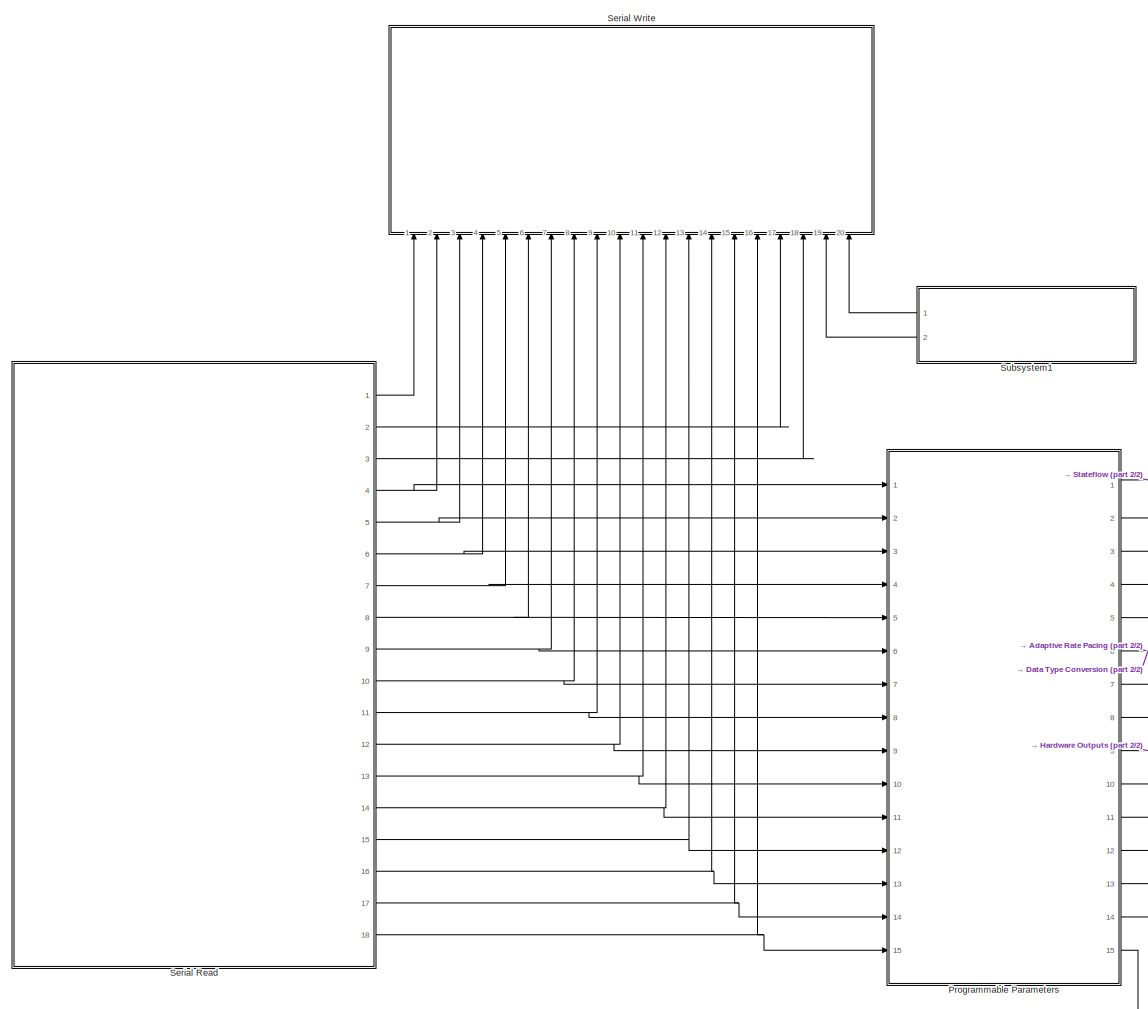
[diagram: root canvas - part 1/2, left side, full height]
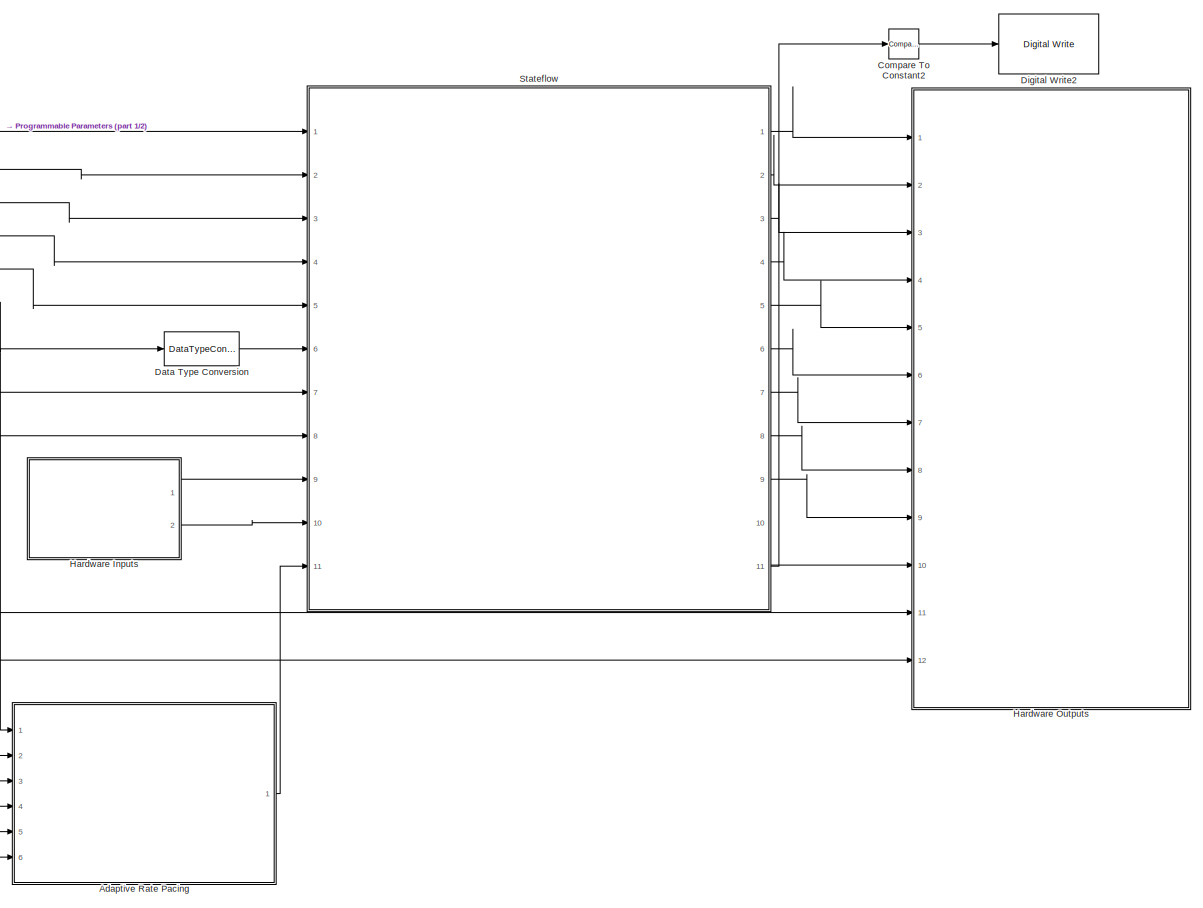
[diagram: root canvas - part 2/2, middle right region]
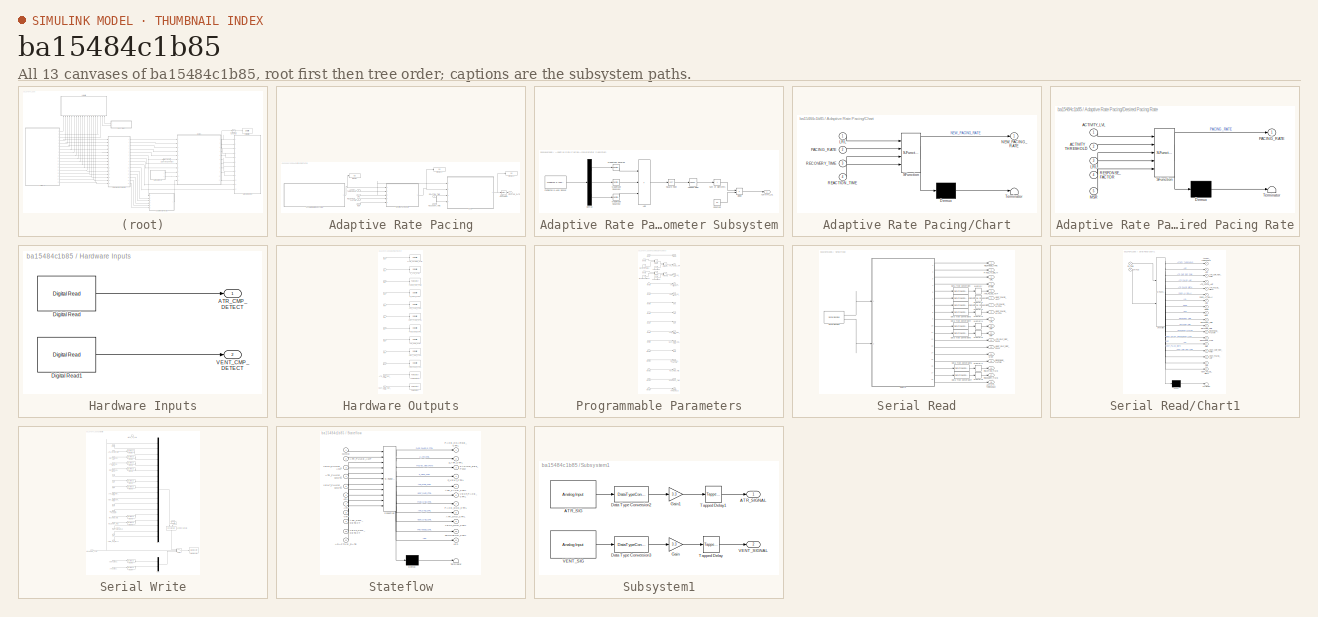
[diagram: thumbnail index - all 13 canvases of the model, root first then tree order]
MODEL slx_ba15484c1b85
KIND model
CONFIG AbsTol = auto
CONFIG EnableMultiTasking = on
CONFIG FixedStep = 1e-3
CONFIG MaxStep = auto
CONFIG MinStep = auto
CONFIG RelTol = 1e-3
CONFIG SampleTimeConstraint = Unconstrained
CONFIG Solver = FixedStepAuto
CONFIG SolverName = FixedStepAuto
CONFIG StartTime = 0.0
CONFIG StopTime = 40
BLOCK [SubSystem] Adaptive Rate Pacing
  Ports = [6, 1]
  TreatAsAtomicUnit = on
BLOCK [Inport] Adaptive Rate Pacing/ACTIVITY_THRESHOLD
  Port = 6
BLOCK [Outport] Adaptive Rate Pacing/ADAPTIVE_RATE
BLOCK [SubSystem] Adaptive Rate Pacing/Accelerometer Subsystem
  Ports = [0, 1]
BLOCK [Outport] Adaptive Rate Pacing/Accelerometer Subsystem/ACTIVITY_LVL
BLOCK [Sum] Adaptive Rate Pacing/Accelerometer Subsystem/Add
  IconShape = rectangular
  Inputs = +++
  Ports = [3, 1]
BLOCK [Constant] Adaptive Rate Pacing/Accelerometer Subsystem/Constant
  Value = 50
BLOCK [Demux] Adaptive Rate Pacing/Accelerometer Subsystem/Demux
  Outputs = 3
  Ports = [1, 3]
BLOCK [Product] Adaptive Rate Pacing/Accelerometer Subsystem/Divide
  Inputs = */
  Ports = [2, 1]
BLOCK [Reference] Adaptive Rate Pacing/Accelerometer Subsystem/FXOS8700 6-Axes Sensor  REF=frdmk64flib/FXOS8700 6-Axes Sensor
  Ports = [0, 1]
  SourceBlock = frdmk64flib/FXOS8700 6-Axes Sensor
  SourceType = freedomk64f.fxos8700
BLOCK [Math] Adaptive Rate Pacing/Accelerometer Subsystem/Magnitude Squared
  Operator = magnitude^2
  Ports = [1, 1]
BLOCK [Math] Adaptive Rate Pacing/Accelerometer Subsystem/Magnitude Squared1
  Operator = magnitude^2
  Ports = [1, 1]
BLOCK [Math] Adaptive Rate Pacing/Accelerometer Subsystem/Magnitude Squared2
  Operator = magnitude^2
  Ports = [1, 1]
BLOCK [Sqrt] Adaptive Rate Pacing/Accelerometer Subsystem/Square Root
BLOCK [Sum] Adaptive Rate Pacing/Accelerometer Subsystem/Sum of Elements
  IconShape = rectangular
  Inputs = +
  Ports = [1, 1]
BLOCK [Reference] Adaptive Rate Pacing/Accelerometer Subsystem/Tapped Delay  REF=simulink/Discrete/Tapped Delay
  Ports = [1, 1]
  SourceBlock = simulink/Discrete/Tapped Delay
  SourceType = Tapped Delay Line
BLOCK [SubSystem] Adaptive Rate Pacing/Chart
  ErrorFcn = Stateflow.Translate.translate
  PermitHierarchicalResolution = ExplicitOnly
  PortSchema = {"entries":[{"content":{"sides":[{"content":{"connectorIds":["In1","In2","In4","In3"]},"type":"ConnectorPlacement.EquallySpacedRectSide","uuid":"fedab669-afc8-4b81-9e8e-92a87252e5ac"},{"content":{"connectorIds":["Out1"],"side":"RIGHT"},"type":"ConnectorPlacement.EquallySpacedRectSide","uuid":"e22eef68-a900-4eb5-a3ef-7284a4069aea"},{"content":{"side":"TOP"},"type":"ConnectorPlacement.EquallySpacedR...<+240ch>
  Ports = [4, 1]
  SFBlockType = Chart
  TreatAsAtomicUnit = on
BLOCK [Demux] Adaptive Rate Pacing/Chart/ Demux 
  Outputs = 1
  Ports = [1, 1]
BLOCK [S-Function] Adaptive Rate Pacing/Chart/ SFunction 
  EnableBusSupport = off
  FunctionName = sf_sfun
  PortCounts = [4 2]
  Ports = [4, 2]
  SFcnIsStateOwnerBlock = off
  SFunctionDeploymentMode = off
  Tag = Stateflow S-Function 1
BLOCK [Terminator] Adaptive Rate Pacing/Chart/ Terminator 
BLOCK [Inport] Adaptive Rate Pacing/Chart/LRL
BLOCK [Outport] Adaptive Rate Pacing/Chart/NEW_PACING_RATE
BLOCK [Inport] Adaptive Rate Pacing/Chart/PACING_RATE
  Port = 2
BLOCK [Inport] Adaptive Rate Pacing/Chart/REACTION_TIME
  Port = 4
BLOCK [Inport] Adaptive Rate Pacing/Chart/RECOVERY_TIME
  Port = 3
BLOCK [DataTypeConversion] Adaptive Rate Pacing/Data Type Conversion
  OutDataTypeStr = uint16
  RndMeth = Floor
  SaturateOnIntegerOverflow = off
BLOCK [SubSystem] Adaptive Rate Pacing/Desired Pacing Rate
  ErrorFcn = Stateflow.Translate.translate
  PermitHierarchicalResolution = ExplicitOnly
  Ports = [5, 1]
  SFBlockType = MATLAB Function
  TreatAsAtomicUnit = on
BLOCK [Demux] Adaptive Rate Pacing/Desired Pacing Rate/ Demux 
  Outputs = 1
  Ports = [1, 1]
BLOCK [S-Function] Adaptive Rate Pacing/Desired Pacing Rate/ SFunction 
  EnableBusSupport = off
  FunctionName = sf_sfun
  PortCounts = [5 2]
  Ports = [5, 2]
  SFcnIsStateOwnerBlock = off
  SFunctionDeploymentMode = off
  Tag = Stateflow S-Function 4
BLOCK [Terminator] Adaptive Rate Pacing/Desired Pacing Rate/ Terminator 
BLOCK [Inport] Adaptive Rate Pacing/Desired Pacing Rate/ACTIVITY_LVL
BLOCK [Inport] Adaptive Rate Pacing/Desired Pacing Rate/ACTIVITY_THRESHOLD
  Port = 2
BLOCK [Inport] Adaptive Rate Pacing/Desired Pacing Rate/LRL
  Port = 3
BLOCK [Inport] Adaptive Rate Pacing/Desired Pacing Rate/MSR
  Port = 5
BLOCK [Outport] Adaptive Rate Pacing/Desired Pacing Rate/PACING_RATE
BLOCK [Inport] Adaptive Rate Pacing/Desired Pacing Rate/RESPONSE_FACTOR
  Port = 4
BLOCK [Display] Adaptive Rate Pacing/Display
  Decimation = 1
  Ports = [1]
BLOCK [Display] Adaptive Rate Pacing/Display1
  Decimation = 1
  Ports = [1]
BLOCK [Display] Adaptive Rate Pacing/Display2
  Decimation = 1
  Ports = [1]
BLOCK [Inport] Adaptive Rate Pacing/LRL
BLOCK [Inport] Adaptive Rate Pacing/MSR
  Port = 2
BLOCK [Inport] Adaptive Rate Pacing/REACTION_TIME
  Port = 4
BLOCK [Inport] Adaptive Rate Pacing/RECOVERY_TIME
  Port = 5
BLOCK [Inport] Adaptive Rate Pacing/RESPONSE_FACTOR
  Port = 3
BLOCK [Reference] Compare To Constant2  REF=simulink/Logic and Bit
Operations/Compare
To Constant
  Ports = [1, 1]
  SourceBlock = simulink/Logic and Bit\nOperations/Compare\nTo Constant
  SourceType = Compare To Constant
BLOCK [DataTypeConversion] Data Type Conversion
  OutDataTypeStr = uint16
  RndMeth = Floor
  SaturateOnIntegerOverflow = off
BLOCK [Reference] Digital Write2  REF=frdmk64flib/Digital Write
  Ports = [1]
  SourceBlock = frdmk64flib/Digital Write
  SourceType = freedomk64f.DigitalWrite
BLOCK [SubSystem] Hardware Inputs
  Ports = [0, 2]
BLOCK [Outport] Hardware Inputs/ATR_CMP_DETECT
BLOCK [Reference] Hardware Inputs/Digital Read  REF=frdmk64flib/Digital Read
  Ports = [0, 1]
  SourceBlock = frdmk64flib/Digital Read
  SourceType = freedomk64f.DigitalRead
BLOCK [Reference] Hardware Inputs/Digital Read1  REF=frdmk64flib/Digital Read
  Ports = [0, 1]
  SourceBlock = frdmk64flib/Digital Read
  SourceType = freedomk64f.DigitalRead
BLOCK [Outport] Hardware Inputs/VENT_CMP_DETECT
  Port = 2
BLOCK [SubSystem] Hardware Outputs
  Ports = [12]
BLOCK [Inport] Hardware Outputs/ATR_CMP_REF_PWM
  Port = 11
BLOCK [Reference] Hardware Outputs/ATR_GND_CTRL  REF=frdmk64flib/Digital Write
  Ports = [1]
  SourceBlock = frdmk64flib/Digital Write
  SourceType = freedomk64f.DigitalWrite
BLOCK [Reference] Hardware Outputs/ATR_PACE_CTRL  REF=frdmk64flib/Digital Write
  Ports = [1]
  SourceBlock = frdmk64flib/Digital Write
  SourceType = freedomk64f.DigitalWrite
BLOCK [Reference] Hardware Outputs/FRONTEND_CTRL  REF=frdmk64flib/Digital Write
  Ports = [1]
  SourceBlock = frdmk64flib/Digital Write
  SourceType = freedomk64f.DigitalWrite
BLOCK [Inport] Hardware Outputs/In1
BLOCK [Inport] Hardware Outputs/In10
  Port = 10
BLOCK [Inport] Hardware Outputs/In2
  Port = 2
BLOCK [Inport] Hardware Outputs/In3
  Port = 3
BLOCK [Inport] Hardware Outputs/In4
  Port = 4
BLOCK [Inport] Hardware Outputs/In5
  Port = 5
BLOCK [Inport] Hardware Outputs/In6
  Port = 6
BLOCK [Inport] Hardware Outputs/In7
  Port = 7
BLOCK [Inport] Hardware Outputs/In8
  Port = 8
BLOCK [Inport] Hardware Outputs/In9
  Port = 9
BLOCK [Reference] Hardware Outputs/PACE_CHARGE_CTRL  REF=frdmk64flib/Digital Write
  Ports = [1]
  SourceBlock = frdmk64flib/Digital Write
  SourceType = freedomk64f.DigitalWrite
BLOCK [Reference] Hardware Outputs/PACE_GND_CTRL  REF=frdmk64flib/Digital Write
  Ports = [1]
  SourceBlock = frdmk64flib/Digital Write
  SourceType = freedomk64f.DigitalWrite
BLOCK [Reference] Hardware Outputs/PACING_REF_PWM  REF=frdmk64flib/PWM Output
  Ports = [1]
  SourceBlock = frdmk64flib/PWM Output
  SourceType = freedomk64f.PWMOutput
BLOCK [Reference] Hardware Outputs/PWM Output  REF=frdmk64flib/PWM Output
  Ports = [1]
  SourceBlock = frdmk64flib/PWM Output
  SourceType = freedomk64f.PWMOutput
BLOCK [Reference] Hardware Outputs/PWM Output1  REF=frdmk64flib/PWM Output
  Ports = [1]
  SourceBlock = frdmk64flib/PWM Output
  SourceType = freedomk64f.PWMOutput
BLOCK [Inport] Hardware Outputs/VENT_CMP_REF_PWM
  Port = 12
BLOCK [Reference] Hardware Outputs/VENT_GND_CTRL  REF=frdmk64flib/Digital Write
  Ports = [1]
  SourceBlock = frdmk64flib/Digital Write
  SourceType = freedomk64f.DigitalWrite
BLOCK [Reference] Hardware Outputs/VENT_PACE_CTRL  REF=frdmk64flib/Digital Write
  Ports = [1]
  SourceBlock = frdmk64flib/Digital Write
  SourceType = freedomk64f.DigitalWrite
BLOCK [Reference] Hardware Outputs/Z_ATR_CTRL  REF=frdmk64flib/Digital Write
  Ports = [1]
  SourceBlock = frdmk64flib/Digital Write
  SourceType = freedomk64f.DigitalWrite
BLOCK [Reference] Hardware Outputs/Z_VENT_CTRL  REF=frdmk64flib/Digital Write
  Ports = [1]
  SourceBlock = frdmk64flib/Digital Write
  SourceType = freedomk64f.DigitalWrite
BLOCK [SubSystem] Programmable Parameters
  Ports = [15, 15]
BLOCK [Outport] Programmable Parameters/ACTIVITY_THRESHOLD
  Port = 15
BLOCK [Outport] Programmable Parameters/ARP
  Port = 7
BLOCK [Outport] Programmable Parameters/ATR_CMP_REF_PWM
  Port = 9
BLOCK [Outport] Programmable Parameters/ATR_PULSE_AMP
  Port = 2
BLOCK [Outport] Programmable Parameters/ATR_PULSE_WIDTH
  Port = 4
BLOCK [Product] Programmable Parameters/Divide
  Inputs = */
  Ports = [2, 1]
BLOCK [Product] Programmable Parameters/Divide1
  Inputs = */
  Ports = [2, 1]
BLOCK [Inport] Programmable Parameters/Input
BLOCK [Inport] Programmable Parameters/Input1
  Port = 2
BLOCK [Inport] Programmable Parameters/Input10
  Port = 11
BLOCK [Inport] Programmable Parameters/Input11
  Port = 12
BLOCK [Inport] Programmable Parameters/Input12
  Port = 13
BLOCK [Inport] Programmable Parameters/Input13
  Port = 14
BLOCK [Inport] Programmable Parameters/Input14
  Port = 15
BLOCK [Inport] Programmable Parameters/Input2
  Port = 3
BLOCK [Inport] Programmable Parameters/Input3
  Port = 4
BLOCK [Inport] Programmable Parameters/Input4
  Port = 5
BLOCK [Inport] Programmable Parameters/Input5
  Port = 6
BLOCK [Inport] Programmable Parameters/Input6
  Port = 7
BLOCK [Inport] Programmable Parameters/Input7
  Port = 8
BLOCK [Inport] Programmable Parameters/Input8
  Port = 9
BLOCK [Inport] Programmable Parameters/Input9
  Port = 10
BLOCK [Outport] Programmable Parameters/LRL
  Port = 6
BLOCK [Outport] Programmable Parameters/MODE
BLOCK [Outport] Programmable Parameters/MSR
  Port = 11
BLOCK [Constant] Programmable Parameters/Maximum Voltage
  Value = 5
BLOCK [Constant] Programmable Parameters/Maximum Voltage1
  Value = 5
BLOCK [Constant] Programmable Parameters/Percentage
  Value = 100
BLOCK [Constant] Programmable Parameters/Percentage1
  Value = 100
BLOCK [Product] Programmable Parameters/Product
  Ports = [2, 1]
BLOCK [Product] Programmable Parameters/Product1
  Ports = [2, 1]
BLOCK [Outport] Programmable Parameters/REACTION_TIME
  Port = 13
BLOCK [Outport] Programmable Parameters/RECOVERY_TIME
  Port = 14
BLOCK [Outport] Programmable Parameters/RESPONSE_FACTOR
  Port = 12
BLOCK [Outport] Programmable Parameters/VENT_CMP_REF_PWM
  Port = 10
BLOCK [Outport] Programmable Parameters/VENT_PULSE_AMP
  Port = 3
BLOCK [Outport] Programmable Parameters/VENT_PULSE_WIDTH
  Port = 5
BLOCK [Outport] Programmable Parameters/VRP
  Port = 8
BLOCK [SubSystem] Serial Read
  Ports = [0, 18]
BLOCK [Outport] Serial Read/ACTIVITY_THRESHOLD
  Port = 18
BLOCK [Outport] Serial Read/ARP
  Port = 10
BLOCK [Outport] Serial Read/ATR_CMP_REF_PWM
  Port = 12
BLOCK [Outport] Serial Read/ATR_PULSE_AMP
  Port = 5
BLOCK [Outport] Serial Read/ATR_PULSE_WIDTH
  Port = 7
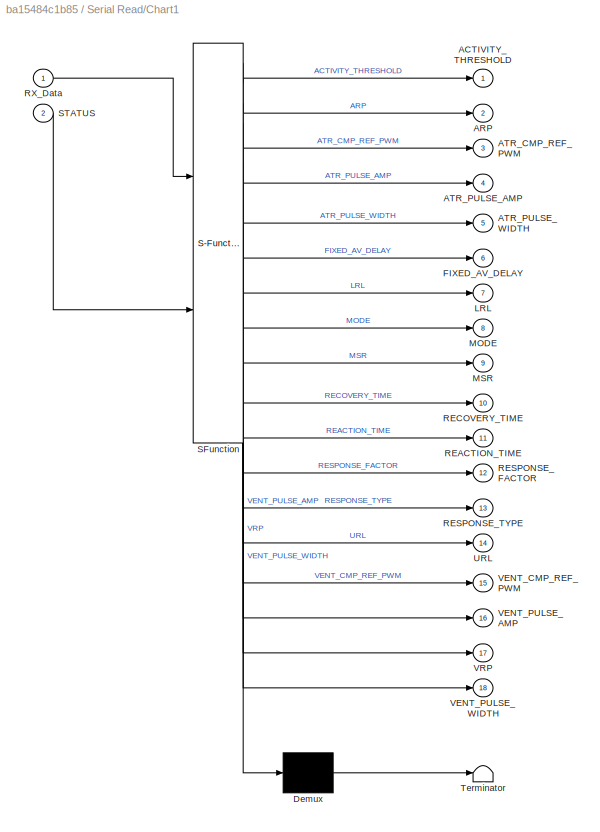
BLOCK [SubSystem] Serial Read/Chart1
  ErrorFcn = Stateflow.Translate.translate
  PermitHierarchicalResolution = ExplicitOnly
  PortSchema = {"entries":[{"content":{"sides":[{"content":{"connectorIds":["In1","In2"]},"type":"ConnectorPlacement.EquallySpacedRectSide","uuid":"1704d51a-e006-419e-ae26-5cef98ca6a68"},{"content":{"connectorIds":["Out13","Out6","Out14","Out8","Out4","Out16","Out5","Out18","Out7","Out2","Out17","Out3","Out15","Out9","Out12","Out11","Out10","Out1"],"side":"RIGHT"},"type":"ConnectorPlacement.EquallySpacedRectSide...<+482ch>
  Ports = [2, 18]
  SFBlockType = Chart
  TreatAsAtomicUnit = on
BLOCK [Demux] Serial Read/Chart1/ Demux 
  Outputs = 1
  Ports = [1, 1]
BLOCK [S-Function] Serial Read/Chart1/ SFunction 
  EnableBusSupport = off
  FunctionName = sf_sfun
  PortCounts = [2 19]
  Ports = [2, 19]
  SFcnIsStateOwnerBlock = off
  SFunctionDeploymentMode = off
  Tag = Stateflow S-Function 2
BLOCK [Terminator] Serial Read/Chart1/ Terminator 
BLOCK [Outport] Serial Read/Chart1/ACTIVITY_THRESHOLD
BLOCK [Outport] Serial Read/Chart1/ARP
  Port = 2
BLOCK [Outport] Serial Read/Chart1/ATR_CMP_REF_PWM
  Port = 3
BLOCK [Outport] Serial Read/Chart1/ATR_PULSE_AMP
  Port = 4
BLOCK [Outport] Serial Read/Chart1/ATR_PULSE_WIDTH
  Port = 5
BLOCK [Outport] Serial Read/Chart1/FIXED_AV_DELAY
  Port = 6
BLOCK [Outport] Serial Read/Chart1/LRL
  Port = 7
BLOCK [Outport] Serial Read/Chart1/MODE
  Port = 8
BLOCK [Outport] Serial Read/Chart1/MSR
  Port = 9
BLOCK [Outport] Serial Read/Chart1/REACTION_TIME
  Port = 11
BLOCK [Outport] Serial Read/Chart1/RECOVERY_TIME
  Port = 10
BLOCK [Outport] Serial Read/Chart1/RESPONSE_FACTOR
  Port = 12
BLOCK [Outport] Serial Read/Chart1/RESPONSE_TYPE
  Port = 13
BLOCK [Inport] Serial Read/Chart1/RX_Data
BLOCK [Inport] Serial Read/Chart1/STATUS
  Port = 2
BLOCK [Outport] Serial Read/Chart1/URL
  Port = 14
BLOCK [Outport] Serial Read/Chart1/VENT_CMP_REF_PWM
  Port = 15
BLOCK [Outport] Serial Read/Chart1/VENT_PULSE_AMP
  Port = 16
BLOCK [Outport] Serial Read/Chart1/VENT_PULSE_WIDTH
  Port = 18
BLOCK [Outport] Serial Read/Chart1/VRP
  Port = 17
BLOCK [DataTypeConversion] Serial Read/Data Type Conversion
  OutDataTypeStr = single
  RndMeth = Floor
  SaturateOnIntegerOverflow = off
BLOCK [DataTypeConversion] Serial Read/Data Type Conversion1
  OutDataTypeStr = single
  RndMeth = Floor
  SaturateOnIntegerOverflow = off
BLOCK [DataTypeConversion] Serial Read/Data Type Conversion2
  OutDataTypeStr = uint16
  RndMeth = Floor
  SaturateOnIntegerOverflow = off
BLOCK [DataTypeConversion] Serial Read/Data Type Conversion3
  OutDataTypeStr = uint16
  RndMeth = Floor
  SaturateOnIntegerOverflow = off
BLOCK [DataTypeConversion] Serial Read/Data Type Conversion4
  OutDataTypeStr = uint16
  RndMeth = Floor
  SaturateOnIntegerOverflow = off
BLOCK [DataTypeConversion] Serial Read/Data Type Conversion5
  OutDataTypeStr = uint16
  RndMeth = Floor
  SaturateOnIntegerOverflow = off
BLOCK [DataTypeConversion] Serial Read/Data Type Conversion6
  OutDataTypeStr = uint16
  RndMeth = Floor
  SaturateOnIntegerOverflow = off
BLOCK [DataTypeConversion] Serial Read/Data Type Conversion7
  OutDataTypeStr = uint16
  RndMeth = Floor
  SaturateOnIntegerOverflow = off
BLOCK [Outport] Serial Read/FIXED_AV_DELAY
  Port = 3
BLOCK [Outport] Serial Read/LRL
  Port = 9
BLOCK [Outport] Serial Read/MODE
  Port = 4
BLOCK [Outport] Serial Read/MSR
  Port = 14
BLOCK [Memory] Serial Read/Memory
BLOCK [Memory] Serial Read/Memory1
BLOCK [Memory] Serial Read/Memory2
BLOCK [Memory] Serial Read/Memory3
BLOCK [Memory] Serial Read/Memory4
BLOCK [Memory] Serial Read/Memory5
BLOCK [Memory] Serial Read/Memory7
BLOCK [Memory] Serial Read/Memory8
BLOCK [Outport] Serial Read/REACTION_TIME
  Port = 16
BLOCK [Outport] Serial Read/RECOVERY_TIME
  Port = 17
BLOCK [Outport] Serial Read/RESPONSE_FACTOR
  Port = 15
BLOCK [Outport] Serial Read/RESPONSE_TYPE
BLOCK [Reference] Serial Read/Serial Receive  REF=frdmk64flib/Serial Receive
  Ports = [0, 2]
  SourceBlock = frdmk64flib/Serial Receive
  SourceType = freedomk64f.SCIRead
BLOCK [Outport] Serial Read/URL
  Port = 2
BLOCK [Outport] Serial Read/VENT_CMP_REF_PWM
  Port = 13
BLOCK [Outport] Serial Read/VENT_PULSE_AMP
  Port = 6
BLOCK [Outport] Serial Read/VENT_PULSE_WIDTH
  Port = 8
BLOCK [Outport] Serial Read/VRP
  Port = 11
BLOCK [SubSystem] Serial Write
  NameLocation = right
  Ports = [20, 0, 0, 1]
BLOCK [Inport] Serial Write/ACTIVITY_THRESHOLD
  Port = 16
BLOCK [Inport] Serial Write/ARP
  OutDataTypeStr = uint16
  Port = 8
BLOCK [Inport] Serial Write/ATR_CMP_REF_PWM
  OutDataTypeStr = uint8
  Port = 10
BLOCK [Inport] Serial Write/ATR_PULSE_AMP
  OutDataTypeStr = single
  Port = 3
BLOCK [Inport] Serial Write/ATR_PULSE_WIDTH
  OutDataTypeStr = uint16
  Port = 5
BLOCK [Inport] Serial Write/ATR_SIGNAL
  OutDataTypeStr = single
  Port = 20
BLOCK [Constant] Serial Write/Constant
  Value = zeros(1, 58, 'uint8')
BLOCK [Inport] Serial Write/FIXED_AV_DELAY
  Port = 18
BLOCK [Inport] Serial Write/LRL
  Port = 7
BLOCK [Inport] Serial Write/MODE
  OutDataTypeStr = uint8
  Port = 2
BLOCK [Inport] Serial Write/MSR
  Port = 12
BLOCK [Mux] Serial Write/Mux
  DisplayOption = bar
  Inputs = 18
  Ports = [18, 1]
BLOCK [Mux] Serial Write/Mux1
  DisplayOption = bar
  Inputs = 2
  Ports = [2, 1]
BLOCK [Inport] Serial Write/REACTION_TIME
  Port = 14
BLOCK [Inport] Serial Write/RECOVERY_TIME
  Port = 15
BLOCK [Inport] Serial Write/RESPONSE_FACTOR
  Port = 13
BLOCK [Inport] Serial Write/RESPONSE_TYPE
  OutDataTypeStr = uint8
BLOCK [Reference] Serial Write/Serial Transmit  REF=frdmk64flib/Serial Transmit
  Ports = [1]
  SourceBlock = frdmk64flib/Serial Transmit
  SourceType = freedomk64f.SCIWrite
BLOCK [Switch] Serial Write/Switch
  Criteria = u2 > Threshold
  InputSameDT = off
  SaturateOnIntegerOverflow = off
BLOCK [Inport] Serial Write/URL
  Port = 17
BLOCK [Inport] Serial Write/VENT_CMP_REF_PWM
  OutDataTypeStr = uint8
  Port = 11
BLOCK [Inport] Serial Write/VENT_PULSE_AMP
  OutDataTypeStr = single
  Port = 4
BLOCK [Inport] Serial Write/VENT_PULSE_WIDTH
  OutDataTypeStr = uint16
  Port = 6
BLOCK [Inport] Serial Write/VENT_SIGNAL
  OutDataTypeStr = single
  Port = 19
BLOCK [Inport] Serial Write/VRP
  OutDataTypeStr = uint16
  Port = 9
BLOCK [Concatenate] Serial Write/Vector Concatenate
  NameLocation = left
  Ports = [2, 1]
BLOCK [TriggerPort] Serial Write/WRITE_TO_DCM
  FunctionName = WRITE_TO_DCM
  IsSimulinkFunction = on
  Ports = []
  StatesWhenEnabling = held
  TriggerType = function-call
  VariantControl = Variant
BLOCK [Reference] Serial Write/single (1)  REF=etargetslib/Byte Pack
  Ports = [1, 1]
  SourceBlock = etargetslib/Byte Pack
  SourceType = Byte pack
BLOCK [Reference] Serial Write/single (2)  REF=etargetslib/Byte Pack
  Ports = [1, 1]
  SourceBlock = etargetslib/Byte Pack
  SourceType = Byte pack
BLOCK [Reference] Serial Write/single (3)  REF=etargetslib/Byte Pack
  Ports = [1, 1]
  SourceBlock = etargetslib/Byte Pack
  SourceType = Byte pack
BLOCK [Reference] Serial Write/single (4)  REF=etargetslib/Byte Pack
  Ports = [1, 1]
  SourceBlock = etargetslib/Byte Pack
  SourceType = Byte pack
BLOCK [Reference] Serial Write/uint16 (1)  REF=etargetslib/Byte Pack
  Ports = [1, 1]
  SourceBlock = etargetslib/Byte Pack
  SourceType = Byte pack
BLOCK [Reference] Serial Write/uint16 (2)  REF=etargetslib/Byte Pack
  Ports = [1, 1]
  SourceBlock = etargetslib/Byte Pack
  SourceType = Byte pack
BLOCK [Reference] Serial Write/uint16 (3)  REF=etargetslib/Byte Pack
  Ports = [1, 1]
  SourceBlock = etargetslib/Byte Pack
  SourceType = Byte pack
BLOCK [Reference] Serial Write/uint16 (4)  REF=etargetslib/Byte Pack
  Ports = [1, 1]
  SourceBlock = etargetslib/Byte Pack
  SourceType = Byte pack
BLOCK [Reference] Serial Write/uint16 (5)  REF=etargetslib/Byte Pack
  Ports = [1, 1]
  SourceBlock = etargetslib/Byte Pack
  SourceType = Byte pack
BLOCK [Reference] Serial Write/uint16 (6)  REF=etargetslib/Byte Pack
  Ports = [1, 1]
  SourceBlock = etargetslib/Byte Pack
  SourceType = Byte pack
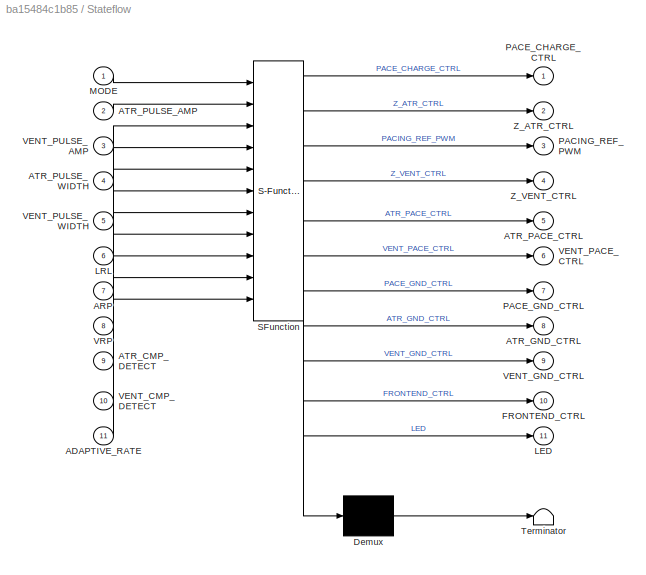
BLOCK [SubSystem] Stateflow
  ErrorFcn = Stateflow.Translate.translate
  PermitHierarchicalResolution = ExplicitOnly
  PortSchema = {"entries":[{"content":{"sides":[{"content":{"connectorIds":["In1","In2","In3","In4","In5","In6","In7","In8","In9","In10","In11"]},"type":"ConnectorPlacement.EquallySpacedRectSide","uuid":"4861ea68-cca1-4690-bebf-db066e06f2bf"},{"content":{"connectorIds":["Out11","Out1","Out2","Out3","Out4","Out5","Out6","Out7","Out8","Out9","Out10"],"side":"RIGHT"},"type":"ConnectorPlacement.EquallySpacedRectSide...<+356ch>
  Ports = [11, 11]
  SFBlockType = Chart
  TreatAsAtomicUnit = on
BLOCK [Demux] Stateflow/ Demux 
  Outputs = 1
  Ports = [1, 1]
BLOCK [S-Function] Stateflow/ SFunction 
  EnableBusSupport = off
  FunctionName = sf_sfun
  PortCounts = [11 12]
  Ports = [11, 12]
  SFcnIsStateOwnerBlock = off
  SFunctionDeploymentMode = off
  Tag = Stateflow S-Function 3
BLOCK [Terminator] Stateflow/ Terminator 
BLOCK [Inport] Stateflow/ADAPTIVE_RATE
  Port = 11
BLOCK [Inport] Stateflow/ARP
  Port = 7
BLOCK [Inport] Stateflow/ATR_CMP_DETECT
  Port = 9
BLOCK [Outport] Stateflow/ATR_GND_CTRL
  Port = 8
BLOCK [Outport] Stateflow/ATR_PACE_CTRL
  Port = 5
BLOCK [Inport] Stateflow/ATR_PULSE_AMP
  Port = 2
BLOCK [Inport] Stateflow/ATR_PULSE_WIDTH
  Port = 4
BLOCK [Outport] Stateflow/FRONTEND_CTRL
  Port = 10
BLOCK [Outport] Stateflow/LED
  Port = 11
BLOCK [Inport] Stateflow/LRL
  Port = 6
BLOCK [Inport] Stateflow/MODE
BLOCK [Outport] Stateflow/PACE_CHARGE_CTRL
BLOCK [Outport] Stateflow/PACE_GND_CTRL
  Port = 7
BLOCK [Outport] Stateflow/PACING_REF_PWM
  Port = 3
BLOCK [Inport] Stateflow/VENT_CMP_DETECT
  Port = 10
BLOCK [Outport] Stateflow/VENT_GND_CTRL
  Port = 9
BLOCK [Outport] Stateflow/VENT_PACE_CTRL
  Port = 6
BLOCK [Inport] Stateflow/VENT_PULSE_AMP
  Port = 3
BLOCK [Inport] Stateflow/VENT_PULSE_WIDTH
  Port = 5
BLOCK [Inport] Stateflow/VRP
  Port = 8
BLOCK [Outport] Stateflow/Z_ATR_CTRL
  Port = 2
BLOCK [Outport] Stateflow/Z_VENT_CTRL
  Port = 4
BLOCK [SubSystem] Subsystem1
  NameLocation = top
  Ports = [0, 2]
BLOCK [Reference] Subsystem1/ATR_SIG  REF=frdmk64flib/Analog Input
  Ports = [0, 1]
  SourceBlock = frdmk64flib/Analog Input
  SourceType = freedomk64f.AnalogInput
BLOCK [Outport] Subsystem1/ATR_SIGNAL
BLOCK [DataTypeConversion] Subsystem1/Data Type Conversion2
  OutDataTypeStr = single
  RndMeth = Nearest
  SaturateOnIntegerOverflow = off
BLOCK [DataTypeConversion] Subsystem1/Data Type Conversion3
  OutDataTypeStr = single
  RndMeth = Nearest
  SaturateOnIntegerOverflow = off
BLOCK [Gain] Subsystem1/Gain
  Gain = 3.3
BLOCK [Gain] Subsystem1/Gain1
  Gain = 3.3
BLOCK [Reference] Subsystem1/Tapped Delay  REF=simulink/Discrete/Tapped Delay
  Ports = [1, 1]
  SourceBlock = simulink/Discrete/Tapped Delay
  SourceType = Tapped Delay Line
BLOCK [Reference] Subsystem1/Tapped Delay1  REF=simulink/Discrete/Tapped Delay
  Ports = [1, 1]
  SourceBlock = simulink/Discrete/Tapped Delay
  SourceType = Tapped Delay Line
BLOCK [Reference] Subsystem1/VENT_SIG  REF=frdmk64flib/Analog Input
  Ports = [0, 1]
  SourceBlock = frdmk64flib/Analog Input
  SourceType = freedomk64f.AnalogInput
BLOCK [Outport] Subsystem1/VENT_SIGNAL
  Port = 2
LINE Adaptive Rate Pacing/ACTIVITY_THRESHOLD:1 -> Adaptive Rate Pacing/Desired Pacing Rate:2
LINE Adaptive Rate Pacing/Accelerometer Subsystem/Add:1 -> Adaptive Rate Pacing/Accelerometer Subsystem/Square Root:1
LINE Adaptive Rate Pacing/Accelerometer Subsystem/Constant:1 -> Adaptive Rate Pacing/Accelerometer Subsystem/Divide:2
LINE Adaptive Rate Pacing/Accelerometer Subsystem/Demux:1 -> Adaptive Rate Pacing/Accelerometer Subsystem/Magnitude Squared:1
LINE Adaptive Rate Pacing/Accelerometer Subsystem/Demux:2 -> Adaptive Rate Pacing/Accelerometer Subsystem/Magnitude Squared1:1
LINE Adaptive Rate Pacing/Accelerometer Subsystem/Demux:3 -> Adaptive Rate Pacing/Accelerometer Subsystem/Magnitude Squared2:1
LINE Adaptive Rate Pacing/Accelerometer Subsystem/Divide:1 -> Adaptive Rate Pacing/Accelerometer Subsystem/ACTIVITY_LVL:1
LINE Adaptive Rate Pacing/Accelerometer Subsystem/FXOS8700 6-Axes Sensor:1 -> Adaptive Rate Pacing/Accelerometer Subsystem/Demux:1
LINE Adaptive Rate Pacing/Accelerometer Subsystem/Magnitude Squared1:1 -> Adaptive Rate Pacing/Accelerometer Subsystem/Add:2
LINE Adaptive Rate Pacing/Accelerometer Subsystem/Magnitude Squared2:1 -> Adaptive Rate Pacing/Accelerometer Subsystem/Add:3
LINE Adaptive Rate Pacing/Accelerometer Subsystem/Magnitude Squared:1 -> Adaptive Rate Pacing/Accelerometer Subsystem/Add:1
LINE Adaptive Rate Pacing/Accelerometer Subsystem/Square Root:1 -> Adaptive Rate Pacing/Accelerometer Subsystem/Tapped Delay:1
LINE Adaptive Rate Pacing/Accelerometer Subsystem/Sum of Elements:1 -> Adaptive Rate Pacing/Accelerometer Subsystem/Divide:1
LINE Adaptive Rate Pacing/Accelerometer Subsystem/Tapped Delay:1 -> Adaptive Rate Pacing/Accelerometer Subsystem/Sum of Elements:1
NET Adaptive Rate Pacing/Accelerometer Subsystem:1 -> Adaptive Rate Pacing/Desired Pacing Rate:1, Adaptive Rate Pacing/Display:1
NET Adaptive Rate Pacing/Chart:1 -> Adaptive Rate Pacing/Data Type Conversion:1, Adaptive Rate Pacing/Display2:1
LINE Adaptive Rate Pacing/Data Type Conversion:1 -> Adaptive Rate Pacing/ADAPTIVE_RATE:1
NET Adaptive Rate Pacing/Desired Pacing Rate:1 -> Adaptive Rate Pacing/Chart:2, Adaptive Rate Pacing/Display1:1
NET Adaptive Rate Pacing/LRL:1 -> Adaptive Rate Pacing/Chart:1, Adaptive Rate Pacing/Desired Pacing Rate:3
LINE Adaptive Rate Pacing/MSR:1 -> Adaptive Rate Pacing/Desired Pacing Rate:5
LINE Adaptive Rate Pacing/REACTION_TIME:1 -> Adaptive Rate Pacing/Chart:4
LINE Adaptive Rate Pacing/RECOVERY_TIME:1 -> Adaptive Rate Pacing/Chart:3
LINE Adaptive Rate Pacing/RESPONSE_FACTOR:1 -> Adaptive Rate Pacing/Desired Pacing Rate:4
LINE Adaptive Rate Pacing:1 -> Stateflow:11
LINE Compare To Constant2:1 -> Digital Write2:1
LINE Data Type Conversion:1 -> Stateflow:6
LINE Hardware Inputs/Digital Read1:1 -> Hardware Inputs/VENT_CMP_DETECT:1
LINE Hardware Inputs/Digital Read:1 -> Hardware Inputs/ATR_CMP_DETECT:1
LINE Hardware Inputs:1 -> Stateflow:9
LINE Hardware Inputs:2 -> Stateflow:10
LINE Hardware Outputs/ATR_CMP_REF_PWM:1 -> Hardware Outputs/PWM Output1:1
LINE Hardware Outputs/In10:1 -> Hardware Outputs/FRONTEND_CTRL:1
LINE Hardware Outputs/In1:1 -> Hardware Outputs/PACE_CHARGE_CTRL:1
LINE Hardware Outputs/In2:1 -> Hardware Outputs/Z_ATR_CTRL:1
LINE Hardware Outputs/In3:1 -> Hardware Outputs/PACING_REF_PWM:1
LINE Hardware Outputs/In4:1 -> Hardware Outputs/Z_VENT_CTRL:1
LINE Hardware Outputs/In5:1 -> Hardware Outputs/ATR_PACE_CTRL:1
LINE Hardware Outputs/In6:1 -> Hardware Outputs/VENT_PACE_CTRL:1
LINE Hardware Outputs/In7:1 -> Hardware Outputs/PACE_GND_CTRL:1
LINE Hardware Outputs/In8:1 -> Hardware Outputs/ATR_GND_CTRL:1
LINE Hardware Outputs/In9:1 -> Hardware Outputs/VENT_GND_CTRL:1
LINE Hardware Outputs/VENT_CMP_REF_PWM:1 -> Hardware Outputs/PWM Output:1
LINE Programmable Parameters/Divide1:1 -> Programmable Parameters/Product1:1
LINE Programmable Parameters/Divide:1 -> Programmable Parameters/Product:1
LINE Programmable Parameters/Input10:1 -> Programmable Parameters/MSR:1
LINE Programmable Parameters/Input11:1 -> Programmable Parameters/RESPONSE_FACTOR:1
LINE Programmable Parameters/Input12:1 -> Programmable Parameters/REACTION_TIME:1
LINE Programmable Parameters/Input13:1 -> Programmable Parameters/RECOVERY_TIME:1
LINE Programmable Parameters/Input14:1 -> Programmable Parameters/ACTIVITY_THRESHOLD:1
LINE Programmable Parameters/Input1:1 -> Programmable Parameters/Divide:1
LINE Programmable Parameters/Input2:1 -> Programmable Parameters/Divide1:1
LINE Programmable Parameters/Input3:1 -> Programmable Parameters/ATR_PULSE_WIDTH:1
LINE Programmable Parameters/Input4:1 -> Programmable Parameters/VENT_PULSE_WIDTH:1
LINE Programmable Parameters/Input5:1 -> Programmable Parameters/LRL:1
LINE Programmable Parameters/Input6:1 -> Programmable Parameters/ARP:1
LINE Programmable Parameters/Input7:1 -> Programmable Parameters/VRP:1
LINE Programmable Parameters/Input8:1 -> Programmable Parameters/ATR_CMP_REF_PWM:1
LINE Programmable Parameters/Input9:1 -> Programmable Parameters/VENT_CMP_REF_PWM:1
LINE Programmable Parameters/Input:1 -> Programmable Parameters/MODE:1
LINE Programmable Parameters/Maximum Voltage1:1 -> Programmable Parameters/Divide1:2
LINE Programmable Parameters/Maximum Voltage:1 -> Programmable Parameters/Divide:2
LINE Programmable Parameters/Percentage1:1 -> Programmable Parameters/Product1:2
LINE Programmable Parameters/Percentage:1 -> Programmable Parameters/Product:2
LINE Programmable Parameters/Product1:1 -> Programmable Parameters/VENT_PULSE_AMP:1
LINE Programmable Parameters/Product:1 -> Programmable Parameters/ATR_PULSE_AMP:1
LINE Programmable Parameters:1 -> Stateflow:1
LINE Programmable Parameters:10 -> Hardware Outputs:12
LINE Programmable Parameters:11 -> Adaptive Rate Pacing:2
LINE Programmable Parameters:12 -> Adaptive Rate Pacing:3
LINE Programmable Parameters:13 -> Adaptive Rate Pacing:4
LINE Programmable Parameters:14 -> Adaptive Rate Pacing:5
LINE Programmable Parameters:15 -> Adaptive Rate Pacing:6
LINE Programmable Parameters:2 -> Stateflow:2
LINE Programmable Parameters:3 -> Stateflow:3
LINE Programmable Parameters:4 -> Stateflow:4
LINE Programmable Parameters:5 -> Stateflow:5
NET Programmable Parameters:6 -> Adaptive Rate Pacing:1, Data Type Conversion:1
LINE Programmable Parameters:7 -> Stateflow:7
LINE Programmable Parameters:8 -> Stateflow:8
LINE Programmable Parameters:9 -> Hardware Outputs:11
LINE Serial Read/Chart1:1 -> Serial Read/ACTIVITY_THRESHOLD:1
LINE Serial Read/Chart1:10 -> Serial Read/Data Type Conversion7:1
LINE Serial Read/Chart1:11 -> Serial Read/Data Type Conversion6:1
LINE Serial Read/Chart1:12 -> Serial Read/RESPONSE_FACTOR:1
LINE Serial Read/Chart1:13 -> Serial Read/RESPONSE_TYPE:1
LINE Serial Read/Chart1:14 -> Serial Read/URL:1
LINE Serial Read/Chart1:15 -> Serial Read/VENT_CMP_REF_PWM:1
LINE Serial Read/Chart1:16 -> Serial Read/Data Type Conversion1:1
LINE Serial Read/Chart1:17 -> Serial Read/Data Type Conversion5:1
LINE Serial Read/Chart1:18 -> Serial Read/Data Type Conversion3:1
LINE Serial Read/Chart1:2 -> Serial Read/Data Type Conversion4:1
LINE Serial Read/Chart1:3 -> Serial Read/ATR_CMP_REF_PWM:1
LINE Serial Read/Chart1:4 -> Serial Read/Data Type Conversion:1
LINE Serial Read/Chart1:5 -> Serial Read/Data Type Conversion2:1
LINE Serial Read/Chart1:6 -> Serial Read/FIXED_AV_DELAY:1
LINE Serial Read/Chart1:7 -> Serial Read/LRL:1
LINE Serial Read/Chart1:8 -> Serial Read/MODE:1
LINE Serial Read/Chart1:9 -> Serial Read/MSR:1
LINE Serial Read/Data Type Conversion1:1 -> Serial Read/Memory1:1
LINE Serial Read/Data Type Conversion2:1 -> Serial Read/Memory2:1
LINE Serial Read/Data Type Conversion3:1 -> Serial Read/Memory3:1
LINE Serial Read/Data Type Conversion4:1 -> Serial Read/Memory4:1
LINE Serial Read/Data Type Conversion5:1 -> Serial Read/Memory5:1
LINE Serial Read/Data Type Conversion6:1 -> Serial Read/Memory7:1
LINE Serial Read/Data Type Conversion7:1 -> Serial Read/Memory8:1
LINE Serial Read/Data Type Conversion:1 -> Serial Read/Memory:1
LINE Serial Read/Memory1:1 -> Serial Read/VENT_PULSE_AMP:1
LINE Serial Read/Memory2:1 -> Serial Read/ATR_PULSE_WIDTH:1
LINE Serial Read/Memory3:1 -> Serial Read/VENT_PULSE_WIDTH:1
LINE Serial Read/Memory4:1 -> Serial Read/ARP:1
LINE Serial Read/Memory5:1 -> Serial Read/VRP:1
LINE Serial Read/Memory7:1 -> Serial Read/REACTION_TIME:1
LINE Serial Read/Memory8:1 -> Serial Read/RECOVERY_TIME:1
LINE Serial Read/Memory:1 -> Serial Read/ATR_PULSE_AMP:1
LINE Serial Read/Serial Receive:1 -> Serial Read/Chart1:1
LINE Serial Read/Serial Receive:2 -> Serial Read/Chart1:2
LINE Serial Read:1 -> Serial Write:1
NET Serial Read:10 -> Programmable Parameters:7, Serial Write:8
NET Serial Read:11 -> Programmable Parameters:8, Serial Write:9
NET Serial Read:12 -> Programmable Parameters:9, Serial Write:10
NET Serial Read:13 -> Programmable Parameters:10, Serial Write:11
NET Serial Read:14 -> Programmable Parameters:11, Serial Write:12
NET Serial Read:15 -> Programmable Parameters:12, Serial Write:13
NET Serial Read:16 -> Programmable Parameters:13, Serial Write:14
NET Serial Read:17 -> Programmable Parameters:14, Serial Write:15
NET Serial Read:18 -> Programmable Parameters:15, Serial Write:16
LINE Serial Read:2 -> Serial Write:17
LINE Serial Read:3 -> Serial Write:18
NET Serial Read:4 -> Programmable Parameters:1, Serial Write:2
NET Serial Read:5 -> Programmable Parameters:2, Serial Write:3
NET Serial Read:6 -> Programmable Parameters:3, Serial Write:4
NET Serial Read:7 -> Programmable Parameters:4, Serial Write:5
NET Serial Read:8 -> Programmable Parameters:5, Serial Write:6
NET Serial Read:9 -> Programmable Parameters:6, Serial Write:7
LINE Serial Write/ACTIVITY_THRESHOLD:1 -> Serial Write/Mux:16
LINE Serial Write/ARP:1 -> Serial Write/uint16 (1):1
LINE Serial Write/ATR_CMP_REF_PWM:1 -> Serial Write/Mux:10
LINE Serial Write/ATR_PULSE_AMP:1 -> Serial Write/single (1):1
LINE Serial Write/ATR_PULSE_WIDTH:1 -> Serial Write/uint16 (4):1
LINE Serial Write/ATR_SIGNAL:1 -> Serial Write/single (4):1
LINE Serial Write/Constant:1 -> Serial Write/Vector Concatenate:2
LINE Serial Write/FIXED_AV_DELAY:1 -> Serial Write/Mux:18
LINE Serial Write/LRL:1 -> Serial Write/Mux:7
LINE Serial Write/MODE:1 -> Serial Write/Mux:2
LINE Serial Write/MSR:1 -> Serial Write/Mux:12
LINE Serial Write/Mux1:1 -> Serial Write/Switch:3
LINE Serial Write/Mux:1 -> Serial Write/Vector Concatenate:1
LINE Serial Write/REACTION_TIME:1 -> Serial Write/uint16 (5):1
LINE Serial Write/RECOVERY_TIME:1 -> Serial Write/uint16 (6):1
LINE Serial Write/RESPONSE_FACTOR:1 -> Serial Write/Mux:13
NET Serial Write/RESPONSE_TYPE:1 -> Serial Write/Mux:1, Serial Write/Switch:2
LINE Serial Write/Switch:1 -> Serial Write/Serial Transmit:1
LINE Serial Write/URL:1 -> Serial Write/Mux:17
LINE Serial Write/VENT_CMP_REF_PWM:1 -> Serial Write/Mux:11
LINE Serial Write/VENT_PULSE_AMP:1 -> Serial Write/single (2):1
LINE Serial Write/VENT_PULSE_WIDTH:1 -> Serial Write/uint16 (3):1
LINE Serial Write/VENT_SIGNAL:1 -> Serial Write/single (3):1
LINE Serial Write/VRP:1 -> Serial Write/uint16 (2):1
LINE Serial Write/Vector Concatenate:1 -> Serial Write/Switch:1
LINE Serial Write/single (1):1 -> Serial Write/Mux:3
LINE Serial Write/single (2):1 -> Serial Write/Mux:4
LINE Serial Write/single (3):1 -> Serial Write/Mux1:1
LINE Serial Write/single (4):1 -> Serial Write/Mux1:2
LINE Serial Write/uint16 (1):1 -> Serial Write/Mux:8
LINE Serial Write/uint16 (2):1 -> Serial Write/Mux:9
LINE Serial Write/uint16 (3):1 -> Serial Write/Mux:6
LINE Serial Write/uint16 (4):1 -> Serial Write/Mux:5
LINE Serial Write/uint16 (5):1 -> Serial Write/Mux:14
LINE Serial Write/uint16 (6):1 -> Serial Write/Mux:15
LINE Stateflow:1 -> Hardware Outputs:1
LINE Stateflow:10 -> Hardware Outputs:10
LINE Stateflow:11 -> Compare To Constant2:1
LINE Stateflow:2 -> Hardware Outputs:2
LINE Stateflow:3 -> Hardware Outputs:3
LINE Stateflow:4 -> Hardware Outputs:4
LINE Stateflow:5 -> Hardware Outputs:5
LINE Stateflow:6 -> Hardware Outputs:6
LINE Stateflow:7 -> Hardware Outputs:7
LINE Stateflow:8 -> Hardware Outputs:8
LINE Stateflow:9 -> Hardware Outputs:9
LINE Subsystem1/ATR_SIG:1 -> Subsystem1/Data Type Conversion2:1
LINE Subsystem1/Data Type Conversion2:1 -> Subsystem1/Gain1:1
LINE Subsystem1/Data Type Conversion3:1 -> Subsystem1/Gain:1
LINE Subsystem1/Gain1:1 -> Subsystem1/Tapped Delay1:1
LINE Subsystem1/Gain:1 -> Subsystem1/Tapped Delay:1
LINE Subsystem1/Tapped Delay1:1 -> Subsystem1/ATR_SIGNAL:1
LINE Subsystem1/Tapped Delay:1 -> Subsystem1/VENT_SIGNAL:1
LINE Subsystem1/VENT_SIG:1 -> Subsystem1/Data Type Conversion3:1
LINE Subsystem1:1 -> Serial Write:20
LINE Subsystem1:2 -> Serial Write:19
note: NET lines group one-source signal fan-out (src -> all destinations, sorted); 1:1 wires keep LINE
CHART Adaptive Rate Pacing/Chart states=4 transitions=6
  STATE_LABEL 'INIT\nentry:\nNEW_PACING_RATE = LRL'
  STATE_LABEL 'RISE\nentry:\nNEW_PACING_RATE = NEW_PACING_RATE + RISE'
  STATE_LABEL 'FALL\nentry:\nNEW_PACING_RATE = NEW_PACING_RATE - FALL'
  STATE_LABEL 'CALC_STANDBY\nentry:\nif (PACING_RATE > NEW_PACING_RATE)\n    RISE = (double(PACING_RATE) - double(NEW_PACING_RATE)) / (double(REACTION_TIME) / double(60));\n    FALL = 0;\nelseif (PACING_RATE < NEW_PACING_RATE)\n    FALL = (double(NEW_PACING_RATE) - double(PACING_RATE)) / double(RECOVERY_TIME);\n    RISE = 0;\nelse\n    RISE = 0;\n    FALL = 0;\nend\n'
CHART Serial Read/Chart1 states=4 transitions=9
  STATE_LABEL 'SET_PARAMS\nentry:\n%Set DCM params\nRESPONSE_TYPE = RX_Data(3);\nMODE = RX_Data(4);\ntemp16 = uint16(RX_Data(5)) + bitshift(uint16(RX_Data(6)), 8);\nARP = double(temp16);\ntemp16 = uint16(RX_Data(7)) + bitshift(uint16(RX_Data(8)), 8);\nVRP = double(temp16);\ntemp_u32 = uint32(RX_Data(9)) + bitshift(uint32(RX_Data(10)), 8) + bitshift(uint32(RX_Data(11)), 16) + bitshift(uint32(RX_Data(12)), 24);\nATR_PULSE_A...<+879ch>'
  STATE_LABEL 'INIT\nentry:\n%Default params\nRESPONSE_TYPE = 1\n% final is 7\nMODE = 1\nARP = 250\nVRP = 320\n% final is 3\nATR_PULSE_AMP = 3\nVENT_PULSE_AMP = 3\nATR_PULSE_WIDTH = 10\nVENT_PULSE_WIDTH = 10\n% final is 62/65\nATR_CMP_REF_PWM = 62\nVENT_CMP_REF_PWM = 65\nREACTION_TIME = 30\nRECOVERY_TIME = 5\nFIXED_AV_DELAY = 250\nRESPONSE_FACTOR = 8\nACTIVITY_THRESHOLD = 1\nLRL = 60\nURL = 120\nMSR = 120'
  STATE_LABEL 'STANDBY\n%Waiting for DCM\n'
  STATE_LABEL 'ECHO_PARAMS\nentry:\nWRITE_TO_DCM()\n'
CHART Stateflow states=29 transitions=49
  STATE_LABEL 'DEFAULT_STATE\n\nentry:\nFRONTEND_CTRL = 0'
  STATE_LABEL 'AOOR'
  STATE_LABEL 'STATE_2\n\n%Atrium Pacing\nPACE_CHARGE_CTRL = 0\nPACE_GND_CTRL = 1\nATR_PACE_CTRL = 1\nATR_GND_CTRL = 0\nZ_ATR_CTRL = 0\nZ_VENT_CTRL = 0\nVENT_GND_CTRL = 0\nVENT_PACE_CTRL = 0\nLED = 1'
  STATE_LABEL 'STATE_1\n\n%Charging primary capacitor (C22)\nATR_PACE_CTRL = 0\nVENT_PACE_CTRL = 0\nPACING_REF_PWM = ATR_PULSE_AMP\nPACE_CHARGE_CTRL = 1\n%\n%Discharging blocking capacitor (C21)\nPACE_GND_CTRL = 1\nVENT_PACE_CTRL = 0\nZ_ATR_CTRL = 0\nZ_VENT_CTRL = 0\nATR_PACE_CTRL = 0\nATR_GND_CTRL = 1\nVENT_GND_CTRL = 0\nLED = 0\n'  <repeated x4 — deduplicated; at blocks: Stateflow>
  STATE_LABEL '[after((60000/ADAPTIVE_RATE) - ATR_PULSE_WIDTH, msec)]'
  STATE_LABEL '[after(ATR_PULSE_WIDTH, msec)]'
  STATE_LABEL 'STATE_2\n\n%Atrium Pacing\nPACE_CHARGE_CTRL = 0\nPACE_GND_CTRL = 1\nATR_PACE_CTRL = 1\nATR_GND_CTRL = 0\nZ_ATR_CTRL = 0\nZ_VENT_CTRL = 0\nVENT_GND_CTRL = 0\nVENT_PACE_CTRL = 0\nLED = 1'
  STATE_LABEL 'AOO'
  STATE_LABEL 'STATE_2\n\n%Atrium Pacing\nPACE_CHARGE_CTRL = 0\nPACE_GND_CTRL = 1\nATR_PACE_CTRL = 1\nATR_GND_CTRL = 0\nZ_ATR_CTRL = 0\nZ_VENT_CTRL = 0\nVENT_GND_CTRL = 0\nVENT_PACE_CTRL = 0\nLED = 1'
  STATE_LABEL '[after((60000/LRL) - ATR_PULSE_WIDTH, msec)]'
  STATE_LABEL '[after(ATR_PULSE_WIDTH, msec)]'
  STATE_LABEL 'STATE_2\n\n%Atrium Pacing\nPACE_CHARGE_CTRL = 0\nPACE_GND_CTRL = 1\nATR_PACE_CTRL = 1\nATR_GND_CTRL = 0\nZ_ATR_CTRL = 0\nZ_VENT_CTRL = 0\nVENT_GND_CTRL = 0\nVENT_PACE_CTRL = 0\nLED = 1'
  STATE_LABEL 'VOOR'
  STATE_LABEL 'STATE_1\n\n%Charging primary capacitor (C22)\nATR_PACE_CTRL = 0\nVENT_PACE_CTRL = 0\nPACING_REF_PWM = VENT_PULSE_AMP\nPACE_CHARGE_CTRL = 1\n%\n%Discharging blocking capacitor (C21)\nPACE_GND_CTRL = 1\nVENT_PACE_CTRL = 0\nZ_ATR_CTRL = 0\nZ_VENT_CTRL = 0\nATR_PACE_CTRL = 0\nATR_GND_CTRL = 0\nVENT_GND_CTRL = 1\nLED = 0'
  STATE_LABEL 'STATE_2\n\n%Ventricular Pacing\nPACE_CHARGE_CTRL = 0\nPACE_GND_CTRL = 1\nATR_PACE_CTRL = 0\nATR_GND_CTRL = 0\nZ_ATR_CTRL = 0\nZ_VENT_CTRL = 0\nVENT_GND_CTRL = 0\nVENT_PACE_CTRL = 1\nLED = 1'  <repeated x4 — deduplicated; at blocks: Stateflow>
  STATE_LABEL '[after((60000/ADAPTIVE_RATE) - VENT_PULSE_WIDTH, msec)]'
  STATE_LABEL '[after(VENT_PULSE_WIDTH, msec)]'
  STATE_LABEL 'STATE_1\n\n%Charging primary capacitor (C22)\nATR_PACE_CTRL = 0\nVENT_PACE_CTRL = 0\nPACING_REF_PWM = VENT_PULSE_AMP\nPACE_CHARGE_CTRL = 1\n%\n%Discharging blocking capacitor (C21)\nPACE_GND_CTRL = 1\nVENT_PACE_CTRL = 0\nZ_ATR_CTRL = 0\nZ_VENT_CTRL = 0\nATR_PACE_CTRL = 0\nATR_GND_CTRL = 0\nVENT_GND_CTRL = 1\nLED = 0'
  STATE_LABEL 'VOO'
  STATE_LABEL 'STATE_1\n\n%Charging primary capacitor (C22)\nATR_PACE_CTRL = 0\nVENT_PACE_CTRL = 0\nPACING_REF_PWM = VENT_PULSE_AMP\nPACE_CHARGE_CTRL = 1\n%\n%Discharging blocking capacitor (C21)\nPACE_GND_CTRL = 1\nVENT_PACE_CTRL = 0\nZ_ATR_CTRL = 0\nZ_VENT_CTRL = 0\nATR_PACE_CTRL = 0\nATR_GND_CTRL = 0\nVENT_GND_CTRL = 1\nLED = 0\n'
  STATE_LABEL '[after((60000/LRL) - VENT_PULSE_WIDTH, msec)]'
  STATE_LABEL '[after(VENT_PULSE_WIDTH, msec)]'
  STATE_LABEL 'STATE_1\n\n%Charging primary capacitor (C22)\nATR_PACE_CTRL = 0\nVENT_PACE_CTRL = 0\nPACING_REF_PWM = VENT_PULSE_AMP\nPACE_CHARGE_CTRL = 1\n%\n%Discharging blocking capacitor (C21)\nPACE_GND_CTRL = 1\nVENT_PACE_CTRL = 0\nZ_ATR_CTRL = 0\nZ_VENT_CTRL = 0\nATR_PACE_CTRL = 0\nATR_GND_CTRL = 0\nVENT_GND_CTRL = 1\nLED = 0\n'
  STATE_LABEL 'AAIR'
  STATE_LABEL 'ATR_SENSE\nentry:\n%\n%Charging primary capacitor (C22)\nATR_PACE_CTRL = 0\nVENT_PACE_CTRL = 0\nPACING_REF_PWM = ATR_PULSE_AMP\nPACE_CHARGE_CTRL = 1\n%\n%Discharging blocking capacitor (C21)\nPACE_GND_CTRL = 1\nVENT_PACE_CTRL = 0\nZ_ATR_CTRL = 0\nZ_VENT_CTRL = 0\nATR_PACE_CTRL = 0\nATR_GND_CTRL = 1\nVENT_GND_CTRL = 0\nLED = 0'
  STATE_LABEL 'STATE_1\nentry:\n%Enable sensing\nFRONTEND_CTRL = 1\n%\n%Charging primary capacitor (C22)\nATR_PACE_CTRL = 0\nVENT_PACE_CTRL = 0\nPACING_REF_PWM = ATR_PULSE_AMP\nPACE_CHARGE_CTRL = 1\n%\n%Discharging blocking capacitor (C21)\nPACE_GND_CTRL = 1\nVENT_PACE_CTRL = 0\nZ_ATR_CTRL = 0\nZ_VENT_CTRL = 0\nATR_PACE_CTRL = 0\nATR_GND_CTRL = 1\nVENT_GND_CTRL = 0\nLED = 0\n'
  STATE_LABEL 'STATE_2\nentry:\n%Atrium Pacing\nPACE_CHARGE_CTRL = 0\nPACE_GND_CTRL = 1\nATR_PACE_CTRL = 1\nATR_GND_CTRL = 0\nZ_ATR_CTRL = 0\nZ_VENT_CTRL = 0\nVENT_GND_CTRL = 0\nVENT_PACE_CTRL = 0\nLED = 1'
  STATE_LABEL 'after(ATR_PULSE_WIDTH, msec)'
  STATE_LABEL '[ATR_CMP_DETECT == 1]'
  STATE_LABEL 'after(ARP,msec)'
  STATE_LABEL 'after((60000/ADAPTIVE_RATE) - ATR_PULSE_WIDTH - ARP, msec)[ATR_CMP_DETECT == 0]'
  STATE_LABEL 'ATR_SENSE\nentry:\n%\n%Charging primary capacitor (C22)\nATR_PACE_CTRL = 0\nVENT_PACE_CTRL = 0\nPACING_REF_PWM = ATR_PULSE_AMP\nPACE_CHARGE_CTRL = 1\n%\n%Discharging blocking capacitor (C21)\nPACE_GND_CTRL = 1\nVENT_PACE_CTRL = 0\nZ_ATR_CTRL = 0\nZ_VENT_CTRL = 0\nATR_PACE_CTRL = 0\nATR_GND_CTRL = 1\nVENT_GND_CTRL = 0\nLED = 0'
  STATE_LABEL 'STATE_1\nentry:\n%Enable sensing\nFRONTEND_CTRL = 1\n%\n%Charging primary capacitor (C22)\nATR_PACE_CTRL = 0\nVENT_PACE_CTRL = 0\nPACING_REF_PWM = ATR_PULSE_AMP\nPACE_CHARGE_CTRL = 1\n%\n%Discharging blocking capacitor (C21)\nPACE_GND_CTRL = 1\nVENT_PACE_CTRL = 0\nZ_ATR_CTRL = 0\nZ_VENT_CTRL = 0\nATR_PACE_CTRL = 0\nATR_GND_CTRL = 1\nVENT_GND_CTRL = 0\nLED = 0\n'
  STATE_LABEL 'STATE_2\nentry:\n%Atrium Pacing\nPACE_CHARGE_CTRL = 0\nPACE_GND_CTRL = 1\nATR_PACE_CTRL = 1\nATR_GND_CTRL = 0\nZ_ATR_CTRL = 0\nZ_VENT_CTRL = 0\nVENT_GND_CTRL = 0\nVENT_PACE_CTRL = 0\nLED = 1'
CHART Adaptive Rate Pacing/Desired Pacing Rate states=1 transitions=1
  STATE_LABEL 'eML_blk_kernel()'
  STATE_LABEL 'SCRIPT:\nfunction PACING_RATE  = fcn(ACTIVITY_LVL, ACTIVITY_THRESHOLD, LRL, RESPONSE_FACTOR, MSR)\n    if (ACTIVITY_LVL <= ACTIVITY_THRESHOLD)\n        PACING_RATE = LRL;    \n    else\n        m = (MSR - LRL)/((ACTIVITY_THRESHOLD + (((1.6 - ACTIVITY_THRESHOLD)/16)*(16-(RESPONSE_FACTOR - 1)))) - ACTIVITY_THRESHOLD);\n        b = LRL - (m*(ACTIVITY_THRESHOLD));\n        if ((m * ACTIVITY_LVL + b) > MSR)\n ...<+111ch>'
CHART  states=0 transitions=0
CHART  states=0 transitions=0
CHART  states=0 transitions=0
CHART  states=0 transitions=0
